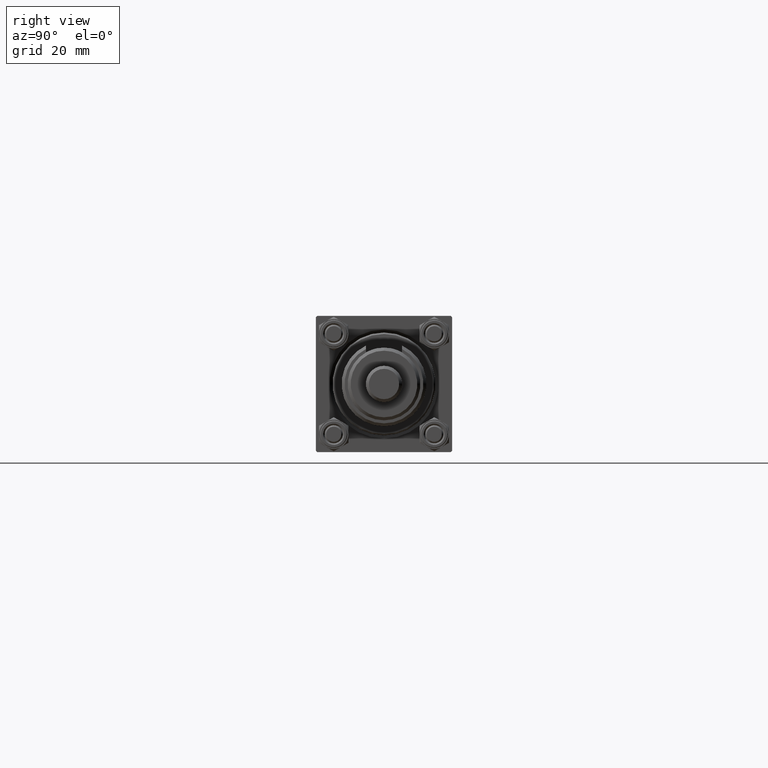
[diagram: clean part render]
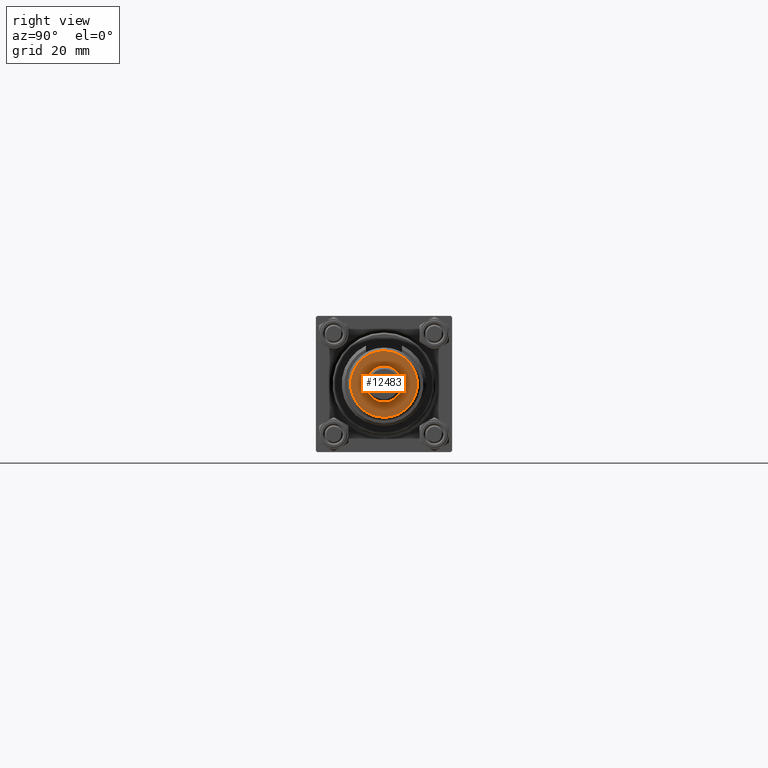
[diagram: same view with one face highlighted and labeled with its STEP entity id]
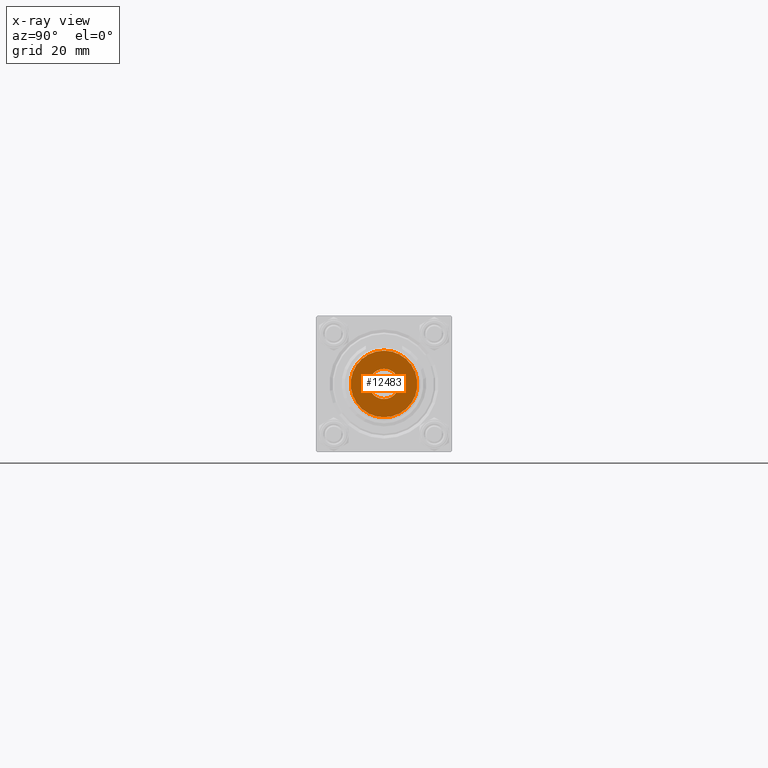
[diagram: x-ray of the same camera — body ghosted, the highlighted face saturated]
A machine part, right view. The second image highlights one B-rep face of the part: STEP entity #12483.
The next image is the same camera in x-ray: the body ghosted, the highlighted face saturated — about 0% of this face is hidden behind the body in this view.
In plain terms, the highlighted planar face has unit normal (1, 0, -0).
Its self-contained STEP definition (entity closure, byte-faithful):
#417 = AXIS2_PLACEMENT_3D ( 'NONE', #7800, #16596, #29096 ) ;
#774 = CARTESIAN_POINT ( 'NONE',  ( 5.000000000000000000, 6.123233995736766282E-16, 22.00000000000000000 ) ) ;
#876 = FACE_BOUND ( 'NONE', #23064, .T. ) ;
#2011 = DIRECTION ( 'NONE',  ( 0.000000000000000000, 0.000000000000000000, 1.000000000000000000 ) ) ;
#2977 = DIRECTION ( 'NONE',  ( 0.000000000000000000, 0.000000000000000000, 1.000000000000000000 ) ) ;
#3157 = EDGE_CURVE ( 'NONE', #48934, #50092, #42725, .T. ) ;
#3319 = DIRECTION ( 'NONE',  ( 1.000000000000000000, 0.000000000000000000, 0.000000000000000000 ) ) ;
#4091 = PLANE ( 'NONE',  #417 ) ;
#5756 = CARTESIAN_POINT ( 'NONE',  ( 0.000000000000000000, 0.000000000000000000, 22.00000000000000000 ) ) ;
#6245 = AXIS2_PLACEMENT_3D ( 'NONE', #5756, #2011, #3319 ) ;
#6901 = CARTESIAN_POINT ( 'NONE',  ( 0.000000000000000000, 0.000000000000000000, 22.00000000000000000 ) ) ;
#7206 = CARTESIAN_POINT ( 'NONE',  ( 10.99999999999999645, 1.408343819019456176E-15, 22.00000000000000000 ) ) ;
#7800 = CARTESIAN_POINT ( 'NONE',  ( 0.000000000000000000, 0.000000000000000000, 22.00000000000000000 ) ) ;
#8326 = EDGE_CURVE ( 'NONE', #50092, #48934, #25753, .T. ) ;
#9548 = EDGE_CURVE ( 'NONE', #33108, #19642, #20713, .T. ) ;
#9755 = EDGE_LOOP ( 'NONE', ( #52622, #43931 ) ) ;
#10691 = DIRECTION ( 'NONE',  ( 1.000000000000000000, 0.000000000000000000, 0.000000000000000000 ) ) ;
#11158 = DIRECTION ( 'NONE',  ( 0.000000000000000000, 0.000000000000000000, 1.000000000000000000 ) ) ;
#12483 = ADVANCED_FACE ( 'NONE', ( #25100, #876 ), #4091, .T. ) ;
#12658 = EDGE_CURVE ( 'NONE', #19642, #33108, #19987, .T. ) ;
#16596 = DIRECTION ( 'NONE',  ( 0.000000000000000000, 0.000000000000000000, 1.000000000000000000 ) ) ;
#16837 = ORIENTED_EDGE ( 'NONE', *, *, #8326, .F. ) ;
#19195 = DIRECTION ( 'NONE',  ( 0.000000000000000000, 0.000000000000000000, 1.000000000000000000 ) ) ;
#19642 = VERTEX_POINT ( 'NONE', #43224 ) ;
#19987 = CIRCLE ( 'NONE', #42079, 10.99999999999999645 ) ;
#20670 = AXIS2_PLACEMENT_3D ( 'NONE', #6901, #11158, #27407 ) ;
#20713 = CIRCLE ( 'NONE', #6245, 10.99999999999999645 ) ;
#22941 = ORIENTED_EDGE ( 'NONE', *, *, #3157, .F. ) ;
#23064 = EDGE_LOOP ( 'NONE', ( #16837, #22941 ) ) ;
#25100 = FACE_OUTER_BOUND ( 'NONE', #9755, .T. ) ;
#25753 = CIRCLE ( 'NONE', #20670, 5.000000000000000000 ) ;
#27407 = DIRECTION ( 'NONE',  ( 1.000000000000000000, 0.000000000000000000, 0.000000000000000000 ) ) ;
#28245 = AXIS2_PLACEMENT_3D ( 'NONE', #47482, #2977, #34677 ) ;
#29096 = DIRECTION ( 'NONE',  ( 1.000000000000000000, 0.000000000000000000, -0.000000000000000000 ) ) ;
#33108 = VERTEX_POINT ( 'NONE', #7206 ) ;
#34677 = DIRECTION ( 'NONE',  ( 1.000000000000000000, 0.000000000000000000, 0.000000000000000000 ) ) ;
#35878 = CARTESIAN_POINT ( 'NONE',  ( -5.000000000000000000, 0.000000000000000000, 22.00000000000000000 ) ) ;
#42079 = AXIS2_PLACEMENT_3D ( 'NONE', #47993, #19195, #10691 ) ;
#42725 = CIRCLE ( 'NONE', #28245, 5.000000000000000000 ) ;
#43224 = CARTESIAN_POINT ( 'NONE',  ( -10.99999999999999645, 0.000000000000000000, 22.00000000000000000 ) ) ;
#43931 = ORIENTED_EDGE ( 'NONE', *, *, #9548, .T. ) ;
#47482 = CARTESIAN_POINT ( 'NONE',  ( 0.000000000000000000, 0.000000000000000000, 22.00000000000000000 ) ) ;
#47993 = CARTESIAN_POINT ( 'NONE',  ( 0.000000000000000000, 0.000000000000000000, 22.00000000000000000 ) ) ;
#48934 = VERTEX_POINT ( 'NONE', #774 ) ;
#50092 = VERTEX_POINT ( 'NONE', #35878 ) ;
#52622 = ORIENTED_EDGE ( 'NONE', *, *, #12658, .T. ) ;